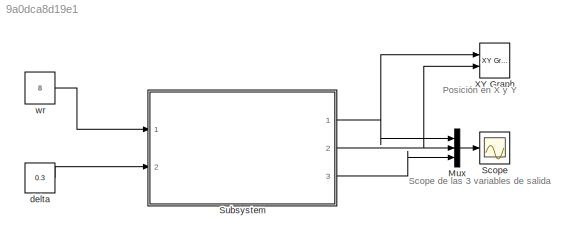
MODEL slx_9a0dca8d19e1
KIND model
CONFIG AbsTol = auto
CONFIG EnableMultiTasking = off
CONFIG FixedStep = auto
CONFIG MaxStep = auto
CONFIG MinStep = auto
CONFIG RelTol = 1e-3
CONFIG SampleTimeConstraint = Unconstrained
CONFIG Solver = VariableStepAuto
CONFIG SolverName = VariableStepAuto
CONFIG StartTime = 0.0
CONFIG StopTime = 10.0
BLOCK [Mux] Mux
  DisplayOption = bar
  Inputs = 3
  Ports = [3, 1]
BLOCK [Scope] Scope
  Floating = off
  NumInputPorts = 1
  Ports = [1]
  ScopeSpecificationString = Simulink.scopes.TimeScopeBlockCfg('CurrentConfiguration', extmgr.ConfigurationSet(extmgr.Configuration('Core','General UI',true),extmgr.Configuration('Core','Source UI',true),extmgr.Configuration('Sources','WiredSimulink',true),extmgr.Configuration('Visuals','Time Domain',true,'SerializedDisplays',{struct('MinYLimReal','-12.33424','MaxYLimReal','14.02665','YLabelReal','','MinYLimMag','0.00000','Ma...<+1394ch>
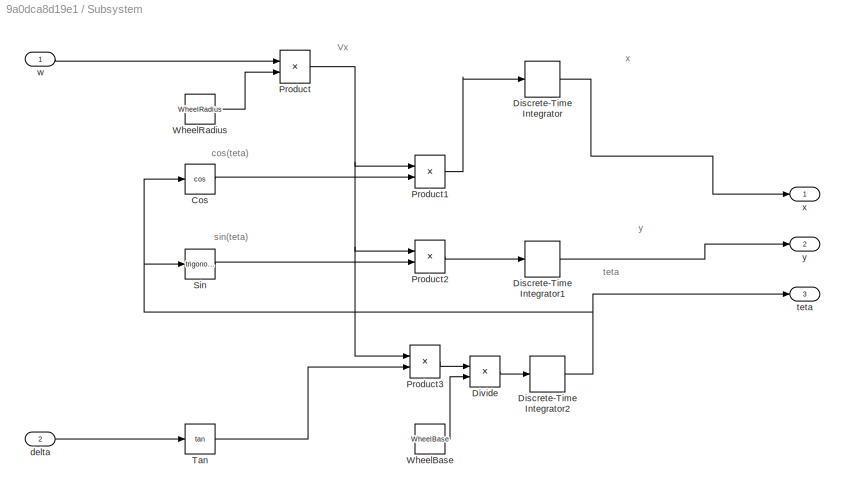
BLOCK [SubSystem] Subsystem
  Ports = [2, 3]
  RequestExecContextInheritance = off
BLOCK [Trigonometry] Subsystem/Cos
  Operator = cos
  Ports = [1, 1]
BLOCK [DiscreteIntegrator] Subsystem/Discrete-Time Integrator
  ICPrevOutput = DiscIntNeverNeededParam
  ICPrevScaledInput = DiscIntNeverNeededParam
  InitialCondition = Initial_x
  InitialConditionSetting = Auto
  Ports = [1, 1]
  SampleTime = Sample_time
BLOCK [DiscreteIntegrator] Subsystem/Discrete-Time Integrator1
  ICPrevOutput = DiscIntNeverNeededParam
  ICPrevScaledInput = DiscIntNeverNeededParam
  InitialCondition = Initial_y
  InitialConditionSetting = Auto
  Ports = [1, 1]
  SampleTime = Sample_time
BLOCK [DiscreteIntegrator] Subsystem/Discrete-Time Integrator2
  ICPrevOutput = DiscIntNeverNeededParam
  ICPrevScaledInput = DiscIntNeverNeededParam
  InitialCondition = Initial_t
  InitialConditionSetting = Auto
  Ports = [1, 1]
  SampleTime = Sample_time
BLOCK [Product] Subsystem/Divide
  InputSameDT = off
  Inputs = */
  OutDataTypeStr = Inherit: Inherit via internal rule
  Ports = [2, 1]
  RndMeth = Floor
  SaturateOnIntegerOverflow = off
BLOCK [Product] Subsystem/Product
  InputSameDT = off
  OutDataTypeStr = Inherit: Inherit via internal rule
  Ports = [2, 1]
  RndMeth = Floor
  SaturateOnIntegerOverflow = off
BLOCK [Product] Subsystem/Product1
  InputSameDT = off
  OutDataTypeStr = Inherit: Inherit via internal rule
  Ports = [2, 1]
  RndMeth = Floor
  SaturateOnIntegerOverflow = off
BLOCK [Product] Subsystem/Product2
  InputSameDT = off
  OutDataTypeStr = Inherit: Inherit via internal rule
  Ports = [2, 1]
  RndMeth = Floor
  SaturateOnIntegerOverflow = off
BLOCK [Product] Subsystem/Product3
  InputSameDT = off
  OutDataTypeStr = Inherit: Inherit via internal rule
  Ports = [2, 1]
  RndMeth = Floor
  SaturateOnIntegerOverflow = off
BLOCK [Trigonometry] Subsystem/Sin
  Ports = [1, 1]
BLOCK [Trigonometry] Subsystem/Tan
  Operator = tan
  Ports = [1, 1]
BLOCK [Constant] Subsystem/WheelBase
  Value = WheelBase
BLOCK [Constant] Subsystem/WheelRadius
  Value = WheelRadius
BLOCK [Inport] Subsystem/delta
  IconDisplay = Port number
  Port = 2
BLOCK [Outport] Subsystem/teta
  IconDisplay = Port number
  Port = 3
BLOCK [Inport] Subsystem/w
  IconDisplay = Port number
BLOCK [Outport] Subsystem/x
  IconDisplay = Port number
BLOCK [Outport] Subsystem/y
  IconDisplay = Port number
  Port = 2
BLOCK [Reference] XY Graph  REF=simulink/Sinks/XY Graph
  Ports = [2]
  SourceBlock = simulink/Sinks/XY Graph
  SourceProductBaseCode = SL
  SourceProductName = Simulink
  SourceType = XY scope.
BLOCK [Constant] delta
  Value = 0.3
BLOCK [Constant] wr
  Value = 8
ANNOTATION (root): Posición en X y Y
ANNOTATION (root): Scope de las 3 variables de salida
ANNOTATION Subsystem: Vx
ANNOTATION Subsystem: cos(teta)
ANNOTATION Subsystem: sin(teta)
ANNOTATION Subsystem: teta
ANNOTATION Subsystem: x
ANNOTATION Subsystem: y
LINE Mux:1 -> Scope:1
LINE Subsystem/Cos:1 -> Subsystem/Product1:2
LINE Subsystem/Discrete-Time Integrator1:1 -> Subsystem/y:1
NET Subsystem/Discrete-Time Integrator2:1 -> Subsystem/Cos:1, Subsystem/Sin:1, Subsystem/teta:1
LINE Subsystem/Discrete-Time Integrator:1 -> Subsystem/x:1
LINE Subsystem/Divide:1 -> Subsystem/Discrete-Time Integrator2:1
LINE Subsystem/Product1:1 -> Subsystem/Discrete-Time Integrator:1
LINE Subsystem/Product2:1 -> Subsystem/Discrete-Time Integrator1:1
LINE Subsystem/Product3:1 -> Subsystem/Divide:1
NET Subsystem/Product:1 -> Subsystem/Product1:1, Subsystem/Product2:1, Subsystem/Product3:1
LINE Subsystem/Sin:1 -> Subsystem/Product2:2
LINE Subsystem/Tan:1 -> Subsystem/Product3:2
LINE Subsystem/WheelBase:1 -> Subsystem/Divide:2
LINE Subsystem/WheelRadius:1 -> Subsystem/Product:2
LINE Subsystem/delta:1 -> Subsystem/Tan:1
LINE Subsystem/w:1 -> Subsystem/Product:1
NET Subsystem:1 -> Mux:1, XY Graph:1
NET Subsystem:2 -> Mux:2, XY Graph:2
LINE Subsystem:3 -> Mux:3
LINE delta:1 -> Subsystem:2
LINE wr:1 -> Subsystem:1
note: NET lines group one-source signal fan-out (src -> all destinations, sorted); 1:1 wires keep LINE
